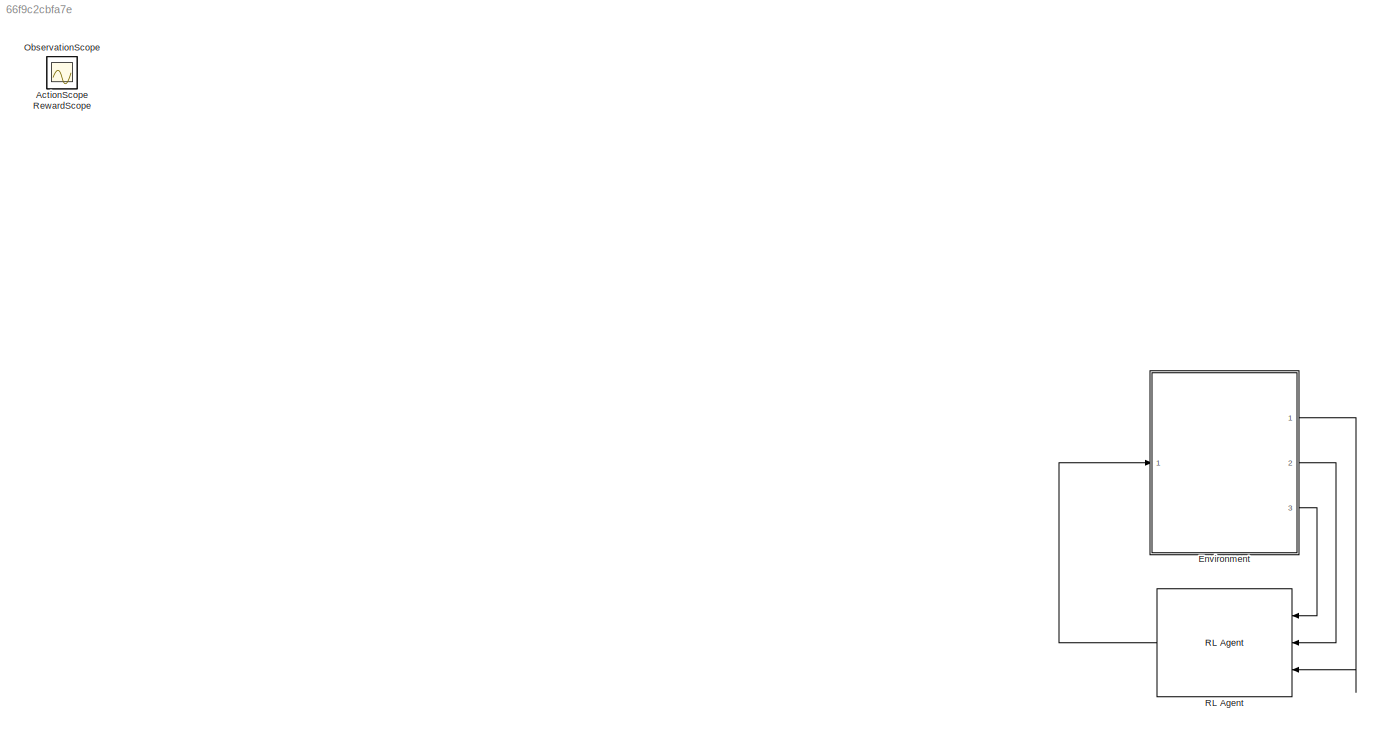
MODEL slx_66f9c2cbfa7e
KIND model
CONFIG AbsTol = auto
CONFIG EnableMultiTasking = off
CONFIG FixedStep = 0.01
CONFIG MaxStep = auto
CONFIG MinStep = auto
CONFIG RelTol = 1e-3
CONFIG SampleTimeConstraint = Unconstrained
CONFIG SolverName = VariableStepAuto
CONFIG StartTime = 0.0
CONFIG StopTime = 20
WORKSPACE source: MATLAB code (in-file)
WORKSPACE mCart = 1
WORKSPACE mPend = 1
WORKSPACE g = 9.81
WORKSPACE L = 0.5
WORKSPACE theta0 = 180
WORKSPACE Kd = 10
BLOCK [Scope] ActionScope
  Floating = off
  IOType = viewer
  NumInputPorts = 1
  Ports = []
  ScopeSpecificationString = Simulink.scopes.TimeScopeBlockCfg('CurrentConfiguration', extmgr.ConfigurationSet(extmgr.Configuration('Core','General UI',true),extmgr.Configuration('Core','Source UI',true),extmgr.Configuration('Sources','WiredSimulink',true,'DataLoggingVariableName','ScopeData1'),extmgr.Configuration('Visuals','Time Domain',true,'SerializedDisplays',{struct('MinYLimReal','-16','MaxYLimReal','16','YLabelReal',''...<+1415ch>
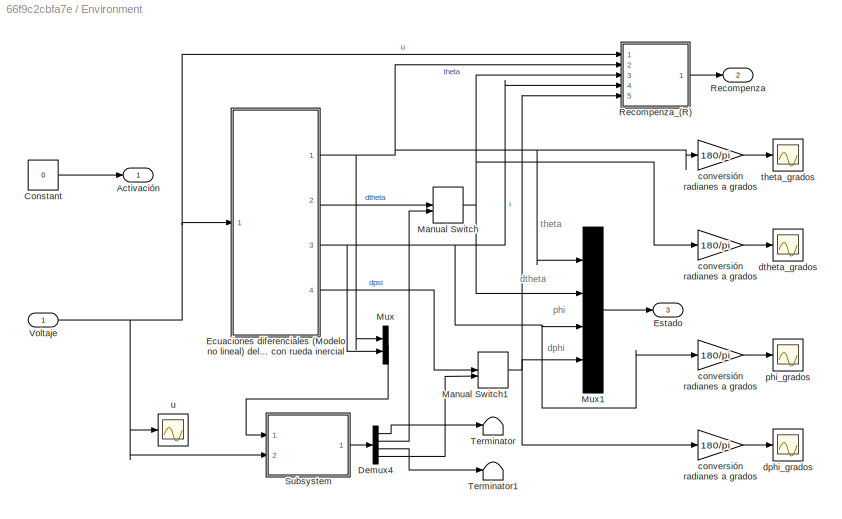
BLOCK [SubSystem] Environment
  Ports = [1, 3]
  RequestExecContextInheritance = off
BLOCK [Outport] Environment/Activación
  VectorParamsAs1DForOutWhenUnconnected = off
BLOCK [Constant] Environment/Constant
  Value = 0
BLOCK [Demux] Environment/Demux4
  Ports = [1, 4]
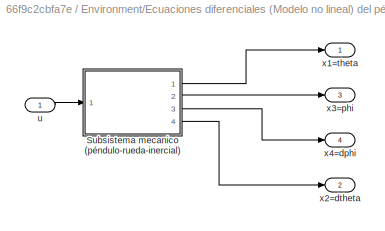
BLOCK [SubSystem] Environment/Ecuaciones diferenciales (Modelo no lineal) del péndulo con rueda inercial
  Ports = [1, 4]
  RequestExecContextInheritance = off
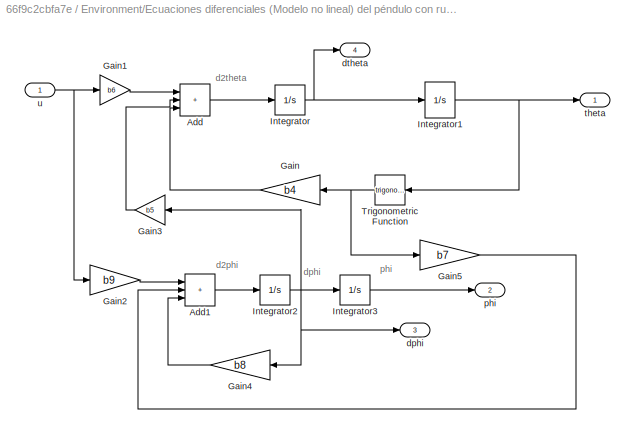
BLOCK [SubSystem] Environment/Ecuaciones diferenciales (Modelo no lineal) del péndulo con rueda inercial/Subsistema mecanico (péndulo-rueda-inercial)
  Ports = [1, 4]
  RequestExecContextInheritance = off
BLOCK [Sum] Environment/Ecuaciones diferenciales (Modelo no lineal) del péndulo con rueda inercial/Subsistema mecanico (péndulo-rueda-inercial)/Add
  IconShape = rectangular
  Inputs = +++
  Ports = [3, 1]
BLOCK [Sum] Environment/Ecuaciones diferenciales (Modelo no lineal) del péndulo con rueda inercial/Subsistema mecanico (péndulo-rueda-inercial)/Add1
  IconShape = rectangular
  Inputs = +++
  Ports = [3, 1]
BLOCK [Gain] Environment/Ecuaciones diferenciales (Modelo no lineal) del péndulo con rueda inercial/Subsistema mecanico (péndulo-rueda-inercial)/Gain
  Gain = b4
BLOCK [Gain] Environment/Ecuaciones diferenciales (Modelo no lineal) del péndulo con rueda inercial/Subsistema mecanico (péndulo-rueda-inercial)/Gain1
  Gain = b6
BLOCK [Gain] Environment/Ecuaciones diferenciales (Modelo no lineal) del péndulo con rueda inercial/Subsistema mecanico (péndulo-rueda-inercial)/Gain2
  Gain = b9
BLOCK [Gain] Environment/Ecuaciones diferenciales (Modelo no lineal) del péndulo con rueda inercial/Subsistema mecanico (péndulo-rueda-inercial)/Gain3
  Gain = b5
BLOCK [Gain] Environment/Ecuaciones diferenciales (Modelo no lineal) del péndulo con rueda inercial/Subsistema mecanico (péndulo-rueda-inercial)/Gain4
  Gain = b8
BLOCK [Gain] Environment/Ecuaciones diferenciales (Modelo no lineal) del péndulo con rueda inercial/Subsistema mecanico (péndulo-rueda-inercial)/Gain5
  Gain = b7
BLOCK [Integrator] Environment/Ecuaciones diferenciales (Modelo no lineal) del péndulo con rueda inercial/Subsistema mecanico (péndulo-rueda-inercial)/Integrator
  Ports = [1, 1]
BLOCK [Integrator] Environment/Ecuaciones diferenciales (Modelo no lineal) del péndulo con rueda inercial/Subsistema mecanico (péndulo-rueda-inercial)/Integrator1
  InitialCondition = -4*pi/180
  Ports = [1, 1]
BLOCK [Integrator] Environment/Ecuaciones diferenciales (Modelo no lineal) del péndulo con rueda inercial/Subsistema mecanico (péndulo-rueda-inercial)/Integrator2
  Ports = [1, 1]
BLOCK [Integrator] Environment/Ecuaciones diferenciales (Modelo no lineal) del péndulo con rueda inercial/Subsistema mecanico (péndulo-rueda-inercial)/Integrator3
  Ports = [1, 1]
BLOCK [Trigonometry] Environment/Ecuaciones diferenciales (Modelo no lineal) del péndulo con rueda inercial/Subsistema mecanico (péndulo-rueda-inercial)/Trigonometric Function
  Ports = [1, 1]
BLOCK [Outport] Environment/Ecuaciones diferenciales (Modelo no lineal) del péndulo con rueda inercial/Subsistema mecanico (péndulo-rueda-inercial)/dphi
  Port = 3
BLOCK [Outport] Environment/Ecuaciones diferenciales (Modelo no lineal) del péndulo con rueda inercial/Subsistema mecanico (péndulo-rueda-inercial)/dtheta
  Port = 4
BLOCK [Outport] Environment/Ecuaciones diferenciales (Modelo no lineal) del péndulo con rueda inercial/Subsistema mecanico (péndulo-rueda-inercial)/phi
  Port = 2
BLOCK [Outport] Environment/Ecuaciones diferenciales (Modelo no lineal) del péndulo con rueda inercial/Subsistema mecanico (péndulo-rueda-inercial)/theta
BLOCK [Inport] Environment/Ecuaciones diferenciales (Modelo no lineal) del péndulo con rueda inercial/Subsistema mecanico (péndulo-rueda-inercial)/u
BLOCK [Inport] Environment/Ecuaciones diferenciales (Modelo no lineal) del péndulo con rueda inercial/u
BLOCK [Outport] Environment/Ecuaciones diferenciales (Modelo no lineal) del péndulo con rueda inercial/x1=theta
BLOCK [Outport] Environment/Ecuaciones diferenciales (Modelo no lineal) del péndulo con rueda inercial/x2=dtheta
  Port = 2
BLOCK [Outport] Environment/Ecuaciones diferenciales (Modelo no lineal) del péndulo con rueda inercial/x3=phi
  Port = 3
BLOCK [Outport] Environment/Ecuaciones diferenciales (Modelo no lineal) del péndulo con rueda inercial/x4=dphi
  Port = 4
BLOCK [Outport] Environment/Estado
  Port = 3
  VectorParamsAs1DForOutWhenUnconnected = off
BLOCK [ManualSwitch] Environment/Manual Switch
  CurrentSetting = 0
BLOCK [ManualSwitch] Environment/Manual Switch1
  CurrentSetting = 0
BLOCK [Mux] Environment/Mux
  DisplayOption = bar
  Inputs = 2
  Ports = [2, 1]
BLOCK [Mux] Environment/Mux1
  DisplayOption = bar
  Ports = [4, 1]
BLOCK [Outport] Environment/Recompenza
  Port = 2
  VectorParamsAs1DForOutWhenUnconnected = off
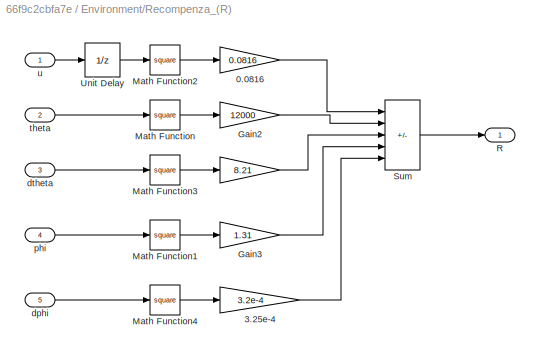
BLOCK [SubSystem] Environment/Recompenza_(R)
  Ports = [5, 1]
  RequestExecContextInheritance = off
BLOCK [Gain] Environment/Recompenza_(R)/ 
  Gain = 8.21
BLOCK [Gain] Environment/Recompenza_(R)/0.0816
  Gain = 0.0816
BLOCK [Gain] Environment/Recompenza_(R)/3.25e-4
  Gain = 3.2e-4
BLOCK [Gain] Environment/Recompenza_(R)/Gain2
  Gain = 12000
BLOCK [Gain] Environment/Recompenza_(R)/Gain3
  Gain = 1.31
BLOCK [Math] Environment/Recompenza_(R)/Math Function
  Operator = square
  Ports = [1, 1]
  SignedPower = on
BLOCK [Math] Environment/Recompenza_(R)/Math Function1
  Operator = square
  Ports = [1, 1]
  SignedPower = on
BLOCK [Math] Environment/Recompenza_(R)/Math Function2
  Operator = square
  Ports = [1, 1]
  SignedPower = on
BLOCK [Math] Environment/Recompenza_(R)/Math Function3
  Operator = square
  Ports = [1, 1]
  SignedPower = on
BLOCK [Math] Environment/Recompenza_(R)/Math Function4
  Operator = square
  Ports = [1, 1]
  SignedPower = on
BLOCK [Outport] Environment/Recompenza_(R)/R
  VectorParamsAs1DForOutWhenUnconnected = off
BLOCK [Sum] Environment/Recompenza_(R)/Sum
  IconShape = rectangular
  Inputs = -----
  Ports = [5, 1]
BLOCK [UnitDelay] Environment/Recompenza_(R)/Unit Delay
  HasFrameUpgradeWarning = on
  SampleTime = Ts
BLOCK [Inport] Environment/Recompenza_(R)/dphi
  Port = 5
BLOCK [Inport] Environment/Recompenza_(R)/dtheta
  Port = 3
BLOCK [Inport] Environment/Recompenza_(R)/phi
  Port = 4
BLOCK [Inport] Environment/Recompenza_(R)/theta
  Port = 2
BLOCK [Inport] Environment/Recompenza_(R)/u
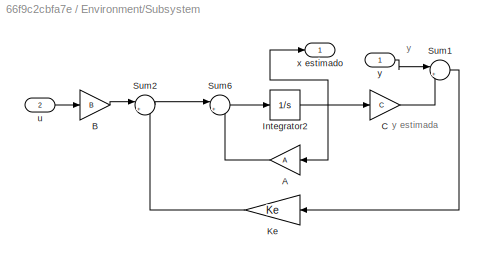
BLOCK [SubSystem] Environment/Subsystem
  Ports = [2, 1]
  RequestExecContextInheritance = off
BLOCK [Gain] Environment/Subsystem/A
  Gain = A
  Multiplication = Matrix(K*u)
BLOCK [Gain] Environment/Subsystem/B
  Gain = B
  Multiplication = Matrix(K*u)
BLOCK [Gain] Environment/Subsystem/C
  Gain = C
  Multiplication = Matrix(K*u)
BLOCK [Integrator] Environment/Subsystem/Integrator2
  Ports = [1, 1]
BLOCK [Gain] Environment/Subsystem/Ke
  Gain = Ke
  Multiplication = Matrix(K*u)
BLOCK [Sum] Environment/Subsystem/Sum1
  Inputs = |+-
  NameLocation = top
  Ports = [2, 1]
BLOCK [Sum] Environment/Subsystem/Sum2
  Inputs = |++
  Ports = [2, 1]
BLOCK [Sum] Environment/Subsystem/Sum6
  Inputs = |++
  Ports = [2, 1]
BLOCK [Inport] Environment/Subsystem/u
  Port = 2
BLOCK [Outport] Environment/Subsystem/x estimado
BLOCK [Inport] Environment/Subsystem/y
BLOCK [Terminator] Environment/Terminator
BLOCK [Terminator] Environment/Terminator1
BLOCK [Inport] Environment/Voltaje
BLOCK [Gain] Environment/conversión radianes a grados
  Gain = 180/pi
BLOCK [Gain] Environment/conversión radianes a grados 
  Gain = 180/pi
BLOCK [Gain] Environment/conversión radianes a grados  
  Gain = 180/pi
BLOCK [Gain] Environment/conversión radianes a grados   
  Gain = 180/pi
BLOCK [Scope] Environment/dphi_grados
  Floating = off
  NumInputPorts = 1
  Ports = [1]
  ScopeSpecificationString = Simulink.scopes.TimeScopeBlockCfg('CurrentConfiguration', extmgr.ConfigurationSet(extmgr.Configuration('Core','General UI',true),extmgr.Configuration('Core','Source UI',true),extmgr.Configuration('Sources','WiredSimulink',true,'DataLoggingVariableName','ScopeData2'),extmgr.Configuration('Visuals','Time Domain',true,'SerializedDisplays',{struct('MinYLimReal','-230.56866','MaxYLimReal','278.47078','...<+1461ch>
BLOCK [Scope] Environment/dtheta_grados
  Floating = off
  NumInputPorts = 1
  Ports = [1]
  ScopeSpecificationString = Simulink.scopes.TimeScopeBlockCfg('CurrentConfiguration', extmgr.ConfigurationSet(extmgr.Configuration('Core','General UI',true),extmgr.Configuration('Core','Source UI',true),extmgr.Configuration('Sources','WiredSimulink',true,'DataLoggingVariableName','ScopeData1'),extmgr.Configuration('Visuals','Time Domain',true,'SerializedDisplays',{struct('MinYLimReal','-1.00000','MaxYLimReal','1.00000','YLab...<+1460ch>
BLOCK [Scope] Environment/phi_grados
  Floating = off
  NumInputPorts = 1
  Ports = [1]
  ScopeSpecificationString = Simulink.scopes.TimeScopeBlockCfg('CurrentConfiguration', extmgr.ConfigurationSet(extmgr.Configuration('Core','General UI',true),extmgr.Configuration('Core','Source UI',true),extmgr.Configuration('Sources','WiredSimulink',true,'DataLoggingVariableName','ScopeData3'),extmgr.Configuration('Visuals','Time Domain',true,'SerializedDisplays',{struct('MinYLimReal','-75.67877','MaxYLimReal','126.16693','Y...<+1469ch>
BLOCK [Scope] Environment/theta_grados
  Floating = off
  NumInputPorts = 1
  Ports = [1]
  ScopeSpecificationString = Simulink.scopes.TimeScopeBlockCfg('CurrentConfiguration', extmgr.ConfigurationSet(extmgr.Configuration('Core','General UI',true),extmgr.Configuration('Core','Source UI',true),extmgr.Configuration('Sources','WiredSimulink',true,'DataLoggingVariableName','ScopeData1'),extmgr.Configuration('Visuals','Time Domain',true,'SerializedDisplays',{struct('MinYLimReal','-5.74957','MaxYLimReal','1.74616','YLab...<+1458ch>
BLOCK [Scope] Environment/u
  Floating = off
  NumInputPorts = 1
  Ports = [1]
  ScopeSpecificationString = Simulink.scopes.TimeScopeBlockCfg('CurrentConfiguration', extmgr.ConfigurationSet(extmgr.Configuration('Core','General UI',true),extmgr.Configuration('Core','Source UI',true),extmgr.Configuration('Sources','WiredSimulink',true,'DataLoggingVariableName','ScopeData1'),extmgr.Configuration('Visuals','Time Domain',true,'SerializedDisplays',{struct('MinYLimReal','-14.95783','MaxYLimReal','14.62048','YL...<+1437ch>
BLOCK [Scope] ObservationScope
  Floating = off
  IOType = viewer
  NumInputPorts = 1
  Ports = []
  ScopeSpecificationString = Simulink.scopes.TimeScopeBlockCfg('CurrentConfiguration', extmgr.ConfigurationSet(extmgr.Configuration('Core','General UI',true),extmgr.Configuration('Core','Source UI',true),extmgr.Configuration('Sources','WiredSimulink',true),extmgr.Configuration('Visuals','Time Domain',true,'SerializedDisplays',{struct('MinYLimReal','-0.2486','MaxYLimReal','0.02762','YLabelReal','','MinYLimMag','0.00000','MaxYL...<+3376ch>
BLOCK [Reference] RL Agent  REF=rllib/RL Agent
  Ports = [3, 1]
  SourceBlock = rllib/RL Agent
  SourceProductBaseCode = RL
  SourceType = RL Agent
BLOCK [Scope] RewardScope
  Floating = off
  IOType = viewer
  NumInputPorts = 1
  Ports = []
  ScopeSpecificationString = Simulink.scopes.TimeScopeBlockCfg('CurrentConfiguration', extmgr.ConfigurationSet(extmgr.Configuration('Core','General UI',true),extmgr.Configuration('Core','Source UI',true),extmgr.Configuration('Sources','WiredSimulink',true,'DataLoggingVariableName','ScopeData2'),extmgr.Configuration('Visuals','Time Domain',true,'SerializedDisplays',{struct('MinYLimReal','-0.70946','MaxYLimReal','-0.42421','YLa...<+1394ch>
ANNOTATION Environment: dphi
ANNOTATION Environment: dtheta
ANNOTATION Environment: phi
ANNOTATION Environment: theta
ANNOTATION Environment/Ecuaciones diferenciales (Modelo no lineal) del péndulo con rueda inercial/Subsistema mecanico (péndulo-rueda-inercial): d2phi
ANNOTATION Environment/Ecuaciones diferenciales (Modelo no lineal) del péndulo con rueda inercial/Subsistema mecanico (péndulo-rueda-inercial): d2theta
ANNOTATION Environment/Ecuaciones diferenciales (Modelo no lineal) del péndulo con rueda inercial/Subsistema mecanico (péndulo-rueda-inercial): dphi
ANNOTATION Environment/Ecuaciones diferenciales (Modelo no lineal) del péndulo con rueda inercial/Subsistema mecanico (péndulo-rueda-inercial): phi
ANNOTATION Environment/Subsystem: y
ANNOTATION Environment/Subsystem: y estimada
LINE Environment/Constant:1 -> Environment/Activación:1
LINE Environment/Demux4:1 -> Environment/Terminator:1
LINE Environment/Demux4:2 -> Environment/Manual Switch:2
LINE Environment/Demux4:3 -> Environment/Terminator1:1
LINE Environment/Demux4:4 -> Environment/Manual Switch1:2
LINE Environment/Ecuaciones diferenciales (Modelo no lineal) del péndulo con rueda inercial/Subsistema mecanico (péndulo-rueda-inercial)/Add1:1 -> Environment/Ecuaciones diferenciales (Modelo no lineal) del péndulo con rueda inercial/Subsistema mecanico (péndulo-rueda-inercial)/Integrator2:1
LINE Environment/Ecuaciones diferenciales (Modelo no lineal) del péndulo con rueda inercial/Subsistema mecanico (péndulo-rueda-inercial)/Add:1 -> Environment/Ecuaciones diferenciales (Modelo no lineal) del péndulo con rueda inercial/Subsistema mecanico (péndulo-rueda-inercial)/Integrator:1
LINE Environment/Ecuaciones diferenciales (Modelo no lineal) del péndulo con rueda inercial/Subsistema mecanico (péndulo-rueda-inercial)/Gain1:1 -> Environment/Ecuaciones diferenciales (Modelo no lineal) del péndulo con rueda inercial/Subsistema mecanico (péndulo-rueda-inercial)/Add:1
LINE Environment/Ecuaciones diferenciales (Modelo no lineal) del péndulo con rueda inercial/Subsistema mecanico (péndulo-rueda-inercial)/Gain2:1 -> Environment/Ecuaciones diferenciales (Modelo no lineal) del péndulo con rueda inercial/Subsistema mecanico (péndulo-rueda-inercial)/Add1:1
LINE Environment/Ecuaciones diferenciales (Modelo no lineal) del péndulo con rueda inercial/Subsistema mecanico (péndulo-rueda-inercial)/Gain3:1 -> Environment/Ecuaciones diferenciales (Modelo no lineal) del péndulo con rueda inercial/Subsistema mecanico (péndulo-rueda-inercial)/Add:2
LINE Environment/Ecuaciones diferenciales (Modelo no lineal) del péndulo con rueda inercial/Subsistema mecanico (péndulo-rueda-inercial)/Gain4:1 -> Environment/Ecuaciones diferenciales (Modelo no lineal) del péndulo con rueda inercial/Subsistema mecanico (péndulo-rueda-inercial)/Add1:3
LINE Environment/Ecuaciones diferenciales (Modelo no lineal) del péndulo con rueda inercial/Subsistema mecanico (péndulo-rueda-inercial)/Gain5:1 -> Environment/Ecuaciones diferenciales (Modelo no lineal) del péndulo con rueda inercial/Subsistema mecanico (péndulo-rueda-inercial)/Add1:2
LINE Environment/Ecuaciones diferenciales (Modelo no lineal) del péndulo con rueda inercial/Subsistema mecanico (péndulo-rueda-inercial)/Gain:1 -> Environment/Ecuaciones diferenciales (Modelo no lineal) del péndulo con rueda inercial/Subsistema mecanico (péndulo-rueda-inercial)/Add:3
NET Environment/Ecuaciones diferenciales (Modelo no lineal) del péndulo con rueda inercial/Subsistema mecanico (péndulo-rueda-inercial)/Integrator1:1 -> Environment/Ecuaciones diferenciales (Modelo no lineal) del péndulo con rueda inercial/Subsistema mecanico (péndulo-rueda-inercial)/Trigonometric Function:1, Environment/Ecuaciones diferenciales (Modelo no lineal) del péndulo con rueda inercial/Subsistema mecanico (péndulo-rueda-inercial)/theta:1
NET Environment/Ecuaciones diferenciales (Modelo no lineal) del péndulo con rueda inercial/Subsistema mecanico (péndulo-rueda-inercial)/Integrator2:1 -> Environment/Ecuaciones diferenciales (Modelo no lineal) del péndulo con rueda inercial/Subsistema mecanico (péndulo-rueda-inercial)/Gain3:1, Environment/Ecuaciones diferenciales (Modelo no lineal) del péndulo con rueda inercial/Subsistema mecanico (péndulo-rueda-inercial)/Gain4:1, Environment/Ecuaciones diferenciales (Modelo no lineal) del péndulo con rueda inercial/Subsistema mecanico (péndulo-rueda-inercial)/Integrator3:1, Environment/Ecuaciones diferenciales (Modelo no lineal) del péndulo con rueda inercial/Subsistema mecanico (péndulo-rueda-inercial)/dphi:1
LINE Environment/Ecuaciones diferenciales (Modelo no lineal) del péndulo con rueda inercial/Subsistema mecanico (péndulo-rueda-inercial)/Integrator3:1 -> Environment/Ecuaciones diferenciales (Modelo no lineal) del péndulo con rueda inercial/Subsistema mecanico (péndulo-rueda-inercial)/phi:1
NET Environment/Ecuaciones diferenciales (Modelo no lineal) del péndulo con rueda inercial/Subsistema mecanico (péndulo-rueda-inercial)/Integrator:1 -> Environment/Ecuaciones diferenciales (Modelo no lineal) del péndulo con rueda inercial/Subsistema mecanico (péndulo-rueda-inercial)/Integrator1:1, Environment/Ecuaciones diferenciales (Modelo no lineal) del péndulo con rueda inercial/Subsistema mecanico (péndulo-rueda-inercial)/dtheta:1
NET Environment/Ecuaciones diferenciales (Modelo no lineal) del péndulo con rueda inercial/Subsistema mecanico (péndulo-rueda-inercial)/Trigonometric Function:1 -> Environment/Ecuaciones diferenciales (Modelo no lineal) del péndulo con rueda inercial/Subsistema mecanico (péndulo-rueda-inercial)/Gain5:1, Environment/Ecuaciones diferenciales (Modelo no lineal) del péndulo con rueda inercial/Subsistema mecanico (péndulo-rueda-inercial)/Gain:1
NET Environment/Ecuaciones diferenciales (Modelo no lineal) del péndulo con rueda inercial/Subsistema mecanico (péndulo-rueda-inercial)/u:1 -> Environment/Ecuaciones diferenciales (Modelo no lineal) del péndulo con rueda inercial/Subsistema mecanico (péndulo-rueda-inercial)/Gain1:1, Environment/Ecuaciones diferenciales (Modelo no lineal) del péndulo con rueda inercial/Subsistema mecanico (péndulo-rueda-inercial)/Gain2:1
LINE Environment/Ecuaciones diferenciales (Modelo no lineal) del péndulo con rueda inercial/Subsistema mecanico (péndulo-rueda-inercial):1 -> Environment/Ecuaciones diferenciales (Modelo no lineal) del péndulo con rueda inercial/x1=theta:1
LINE Environment/Ecuaciones diferenciales (Modelo no lineal) del péndulo con rueda inercial/Subsistema mecanico (péndulo-rueda-inercial):2 -> Environment/Ecuaciones diferenciales (Modelo no lineal) del péndulo con rueda inercial/x3=phi:1
LINE Environment/Ecuaciones diferenciales (Modelo no lineal) del péndulo con rueda inercial/Subsistema mecanico (péndulo-rueda-inercial):3 -> Environment/Ecuaciones diferenciales (Modelo no lineal) del péndulo con rueda inercial/x4=dphi:1
LINE Environment/Ecuaciones diferenciales (Modelo no lineal) del péndulo con rueda inercial/Subsistema mecanico (péndulo-rueda-inercial):4 -> Environment/Ecuaciones diferenciales (Modelo no lineal) del péndulo con rueda inercial/x2=dtheta:1
LINE Environment/Ecuaciones diferenciales (Modelo no lineal) del péndulo con rueda inercial/u:1 -> Environment/Ecuaciones diferenciales (Modelo no lineal) del péndulo con rueda inercial/Subsistema mecanico (péndulo-rueda-inercial):1
NET Environment/Ecuaciones diferenciales (Modelo no lineal) del péndulo con rueda inercial:1 -> Environment/Mux1:1, Environment/Mux:1, Environment/Recompenza_(R):2, Environment/conversión radianes a grados:1
LINE Environment/Ecuaciones diferenciales (Modelo no lineal) del péndulo con rueda inercial:2 -> Environment/Manual Switch:1
NET Environment/Ecuaciones diferenciales (Modelo no lineal) del péndulo con rueda inercial:3 -> Environment/Mux1:3, Environment/Mux:2, Environment/Recompenza_(R):4, Environment/conversión radianes a grados :1
LINE Environment/Ecuaciones diferenciales (Modelo no lineal) del péndulo con rueda inercial:4 -> Environment/Manual Switch1:1
NET Environment/Manual Switch1:1 -> Environment/Mux1:4, Environment/Recompenza_(R):5, Environment/conversión radianes a grados   :1
NET Environment/Manual Switch:1 -> Environment/Mux1:2, Environment/Recompenza_(R):3, Environment/conversión radianes a grados  :1
LINE Environment/Mux1:1 -> Environment/Estado:1
LINE Environment/Mux:1 -> Environment/Subsystem:1
LINE Environment/Recompenza_(R)/ :1 -> Environment/Recompenza_(R)/Sum:3
LINE Environment/Recompenza_(R)/0.0816:1 -> Environment/Recompenza_(R)/Sum:1
LINE Environment/Recompenza_(R)/3.25e-4:1 -> Environment/Recompenza_(R)/Sum:5
LINE Environment/Recompenza_(R)/Gain2:1 -> Environment/Recompenza_(R)/Sum:2
LINE Environment/Recompenza_(R)/Gain3:1 -> Environment/Recompenza_(R)/Sum:4
LINE Environment/Recompenza_(R)/Math Function1:1 -> Environment/Recompenza_(R)/Gain3:1
LINE Environment/Recompenza_(R)/Math Function2:1 -> Environment/Recompenza_(R)/0.0816:1
LINE Environment/Recompenza_(R)/Math Function3:1 -> Environment/Recompenza_(R)/ :1
LINE Environment/Recompenza_(R)/Math Function4:1 -> Environment/Recompenza_(R)/3.25e-4:1
LINE Environment/Recompenza_(R)/Math Function:1 -> Environment/Recompenza_(R)/Gain2:1
LINE Environment/Recompenza_(R)/Sum:1 -> Environment/Recompenza_(R)/R:1
LINE Environment/Recompenza_(R)/Unit Delay:1 -> Environment/Recompenza_(R)/Math Function2:1
LINE Environment/Recompenza_(R)/dphi:1 -> Environment/Recompenza_(R)/Math Function4:1
LINE Environment/Recompenza_(R)/dtheta:1 -> Environment/Recompenza_(R)/Math Function3:1
LINE Environment/Recompenza_(R)/phi:1 -> Environment/Recompenza_(R)/Math Function1:1
LINE Environment/Recompenza_(R)/theta:1 -> Environment/Recompenza_(R)/Math Function:1
LINE Environment/Recompenza_(R)/u:1 -> Environment/Recompenza_(R)/Unit Delay:1
LINE Environment/Recompenza_(R):1 -> Environment/Recompenza:1
LINE Environment/Subsystem/A:1 -> Environment/Subsystem/Sum6:2
LINE Environment/Subsystem/B:1 -> Environment/Subsystem/Sum2:1
LINE Environment/Subsystem/C:1 -> Environment/Subsystem/Sum1:2
NET Environment/Subsystem/Integrator2:1 -> Environment/Subsystem/A:1, Environment/Subsystem/C:1, Environment/Subsystem/x estimado:1
LINE Environment/Subsystem/Ke:1 -> Environment/Subsystem/Sum2:2
LINE Environment/Subsystem/Sum1:1 -> Environment/Subsystem/Ke:1
LINE Environment/Subsystem/Sum2:1 -> Environment/Subsystem/Sum6:1
LINE Environment/Subsystem/Sum6:1 -> Environment/Subsystem/Integrator2:1
LINE Environment/Subsystem/u:1 -> Environment/Subsystem/B:1
LINE Environment/Subsystem/y:1 -> Environment/Subsystem/Sum1:1
LINE Environment/Subsystem:1 -> Environment/Demux4:1
NET Environment/Voltaje:1 -> Environment/Ecuaciones diferenciales (Modelo no lineal) del péndulo con rueda inercial:1, Environment/Recompenza_(R):1, Environment/Subsystem:2, Environment/u:1
LINE Environment/conversión radianes a grados   :1 -> Environment/dphi_grados:1
LINE Environment/conversión radianes a grados  :1 -> Environment/dtheta_grados:1
LINE Environment/conversión radianes a grados :1 -> Environment/phi_grados:1
LINE Environment/conversión radianes a grados:1 -> Environment/theta_grados:1
LINE Environment:1 -> RL Agent:3
LINE Environment:2 -> RL Agent:2
LINE Environment:3 -> RL Agent:1
LINE RL Agent:1 -> Environment:1
note: NET lines group one-source signal fan-out (src -> all destinations, sorted); 1:1 wires keep LINE
